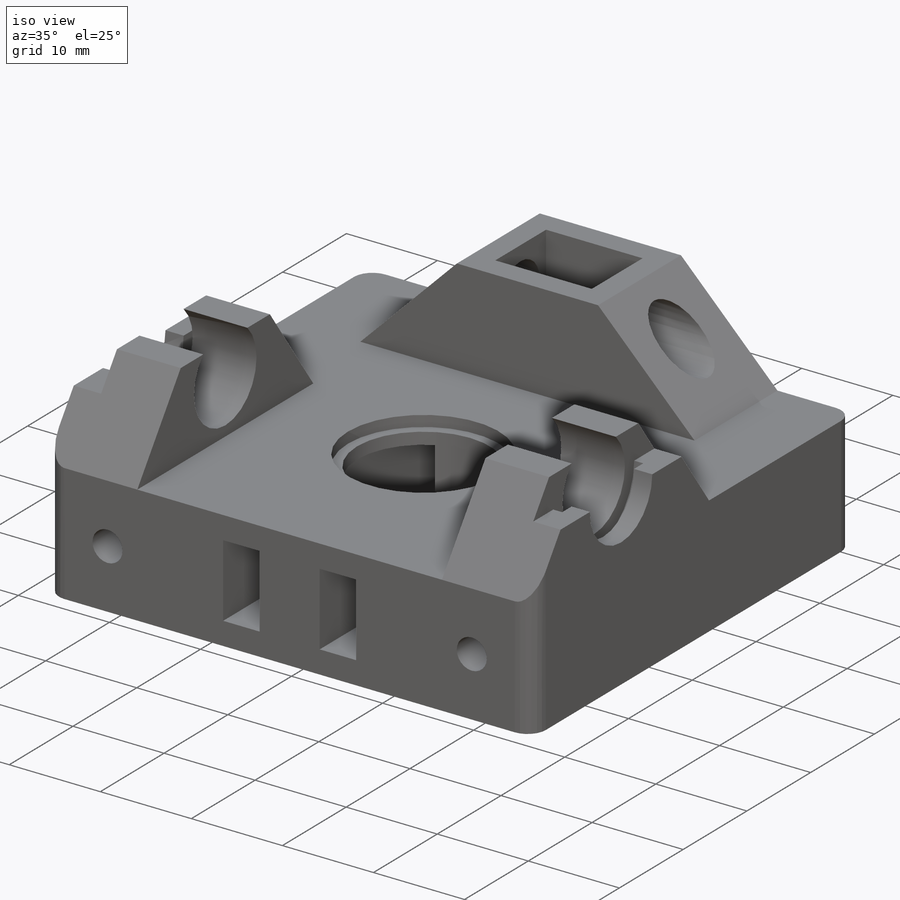
[diagram: iso view]
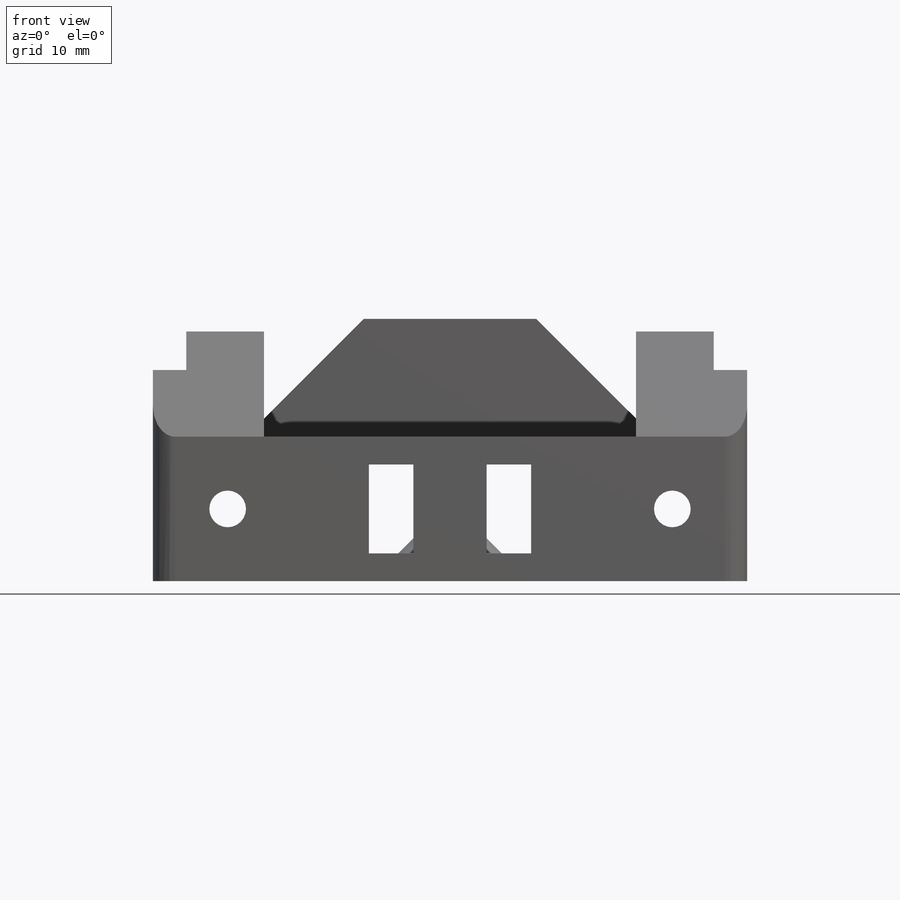
[diagram: front view]
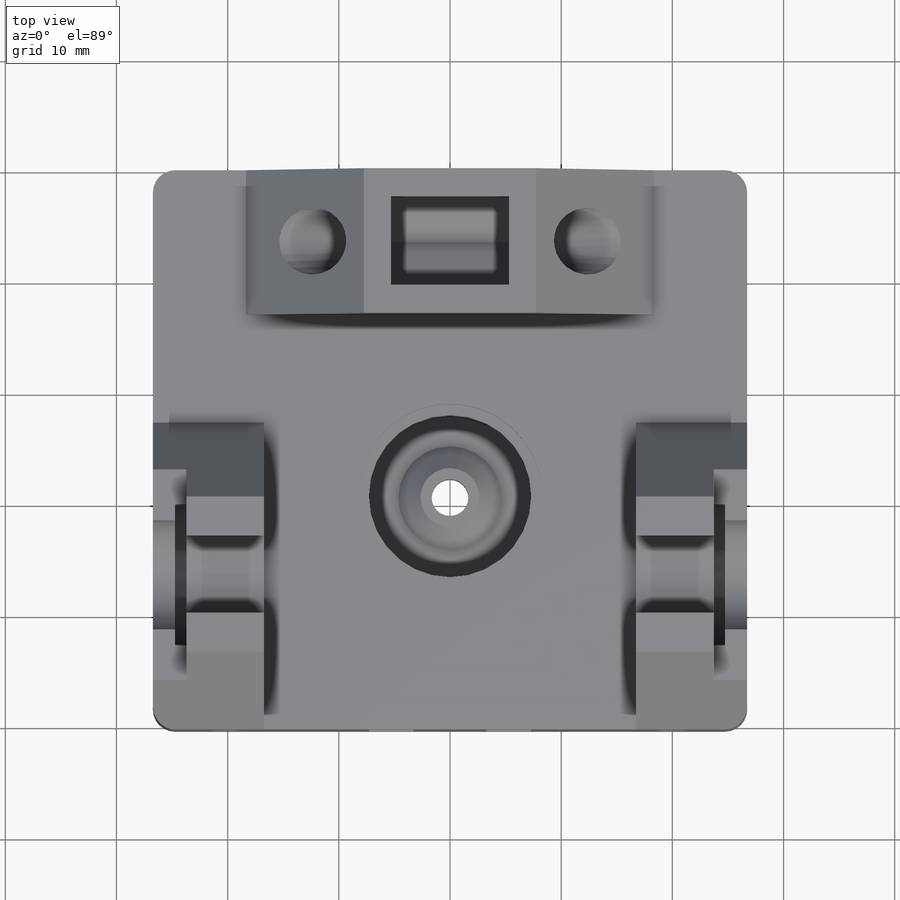
[diagram: top view]
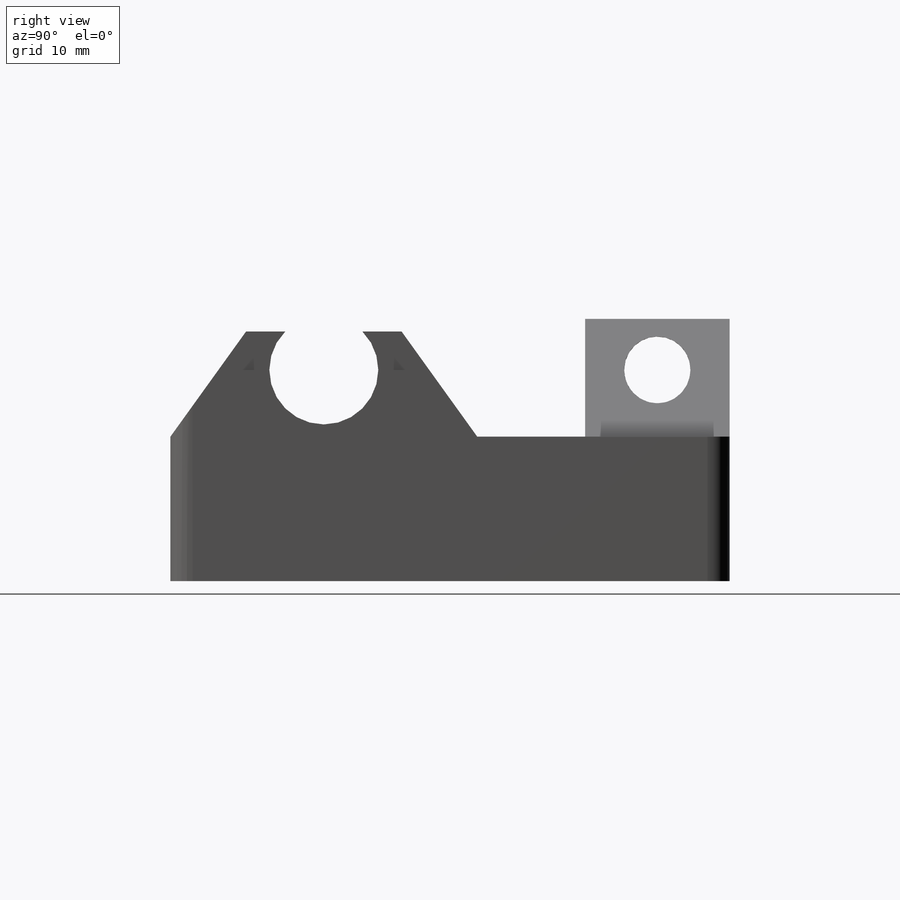
[diagram: right view]
SOLIDWORKS PART (.sldprt)
format: sldprt  version: not decoded by parser v0  size: 589,312 bytes
history: native  units: mm
features: sketch x17, cut_extrude x11, extrude x4, mirror x4, plane x3, material x1, chamfer x1, revolve x1, fillet x1 (+12 scaffold rows collapsed)
feature tree (55):
  scaffold x12  (default folders/planes/origin — collapsed)
  material  "Material <not specified>"
  sketch  "Sketch1"  dims[D1=8.4mm D2=8.4mm D3=20.0mm D4=20.0mm D5=53.4573mm D6=13.0mm]
  extrude  "Boss-Extrude1"  Depth=50.3mm
  sketch  "Sketch3"
  extrude  "Boss-Extrude2"  Depth=15mm
  sketch  "Sketch5"  dims[c1.D1=6.0mm c1.D2=8.0mm c1.D3=8.0mm c1.D4=5.0mm c2.D2=30.0mm c2.D4=6.5mm c2.D5=~3.321564mm c2.D6=30.0mm c3.D5=19.0mm]
  sketch  "Sketch8"  dims[D1=15.5mm D2=13.0mm D3=~18.97865mm]
  extrude  "Boss-Extrude3"  Depth=10.6mm
  chamfer  "Chamfer1"  Distance=10.6mm Angle=45deg
  cut_extrude  "Cut-Extrude1"  [1 undecoded]
  plane  "Plane1"
  sketch  "Sketch10"  dims[D1=9.2mm]
  cut_extrude  "Cut-Extrude2"  Depth=5.3mm
  mirror  "Mirror1"
  sketch  "Sketch11"  dims[c1.D2=6.0mm c1.D3=9.8mm c1.D4=15.6mm c2.D2=30.0mm c2.D5=135.0deg c3.D5=6.0mm c3.D1=0.0mm]
  extrude  "Boss-Extrude4"  Depth=10mm
  plane  "Plane2"  Offset=2mm
  sketch  "Sketch12"  dims[D1=12.7mm]
  cut_extrude  "Cut-Extrude3"  Depth=1mm
  sketch  "Sketch13"
  cut_extrude  "Cut-Extrude4"  Depth=3mm
  mirror  "Mirror2"
  sketch  "Sketch15"  dims[c1.D1=4.0mm c1.D2=8.0mm c1.D3=8.0mm c2.D1=4.0mm c2.D2=8.0mm c2.D3=3.3mm]
  sketch  "Sketch16"  dims[c1.D2=6.4mm c1.D3=3.3mm c1.D1=11.0388mm c2.D1=90.0deg c3.D1=8.0mm]
  cut_extrude  "Cut-Extrude5"  [1 undecoded]
  sketch  "Sketch17"  dims[D1=~4.957244mm]
  cut_extrude  "Cut-Extrude6"  Depth=10.5mm
  cut_extrude  "Cut-Extrude7"  [1 undecoded]
  mirror  "Mirror3"
  sketch  "Sketch18"  dims[D1=16.6mm]
  cut_extrude  "Cut-Extrude8"  Depth=1.2mm
  sketch  "Sketch20"  dims[D1=2.0mm D2=1.0mm D3=45.0deg]
  revolve  "Revolve1"  Angle=360deg
  sketch  "Sketch21"  dims[D1=3.3mm D2=3.3mm]
  cut_extrude  "Cut-Extrude9"  [1 undecoded]
  plane  "Plane3"  Offset=4mm
  sketch  "Sketch22"  dims[D1=6.5mm]
  cut_extrude  "Cut-Extrude10"  Depth=2.6mm
  mirror  "Mirror4"
  fillet  "Fillet1"  Radius=2mm
  sketch  "Sketch23"  dims[D1=0.0mm D2=0.0mm]
  sketch  "Sketch25"  dims[D2=19.0mm D3=2.0mm D1=0.0mm]
  cut_extrude  "Cut-Extrude11"  Depth=1mm
decode coverage: 29 of 39 modeling features carry decoded parameters
note: ~ marks probable driven/reference dimensions
note: 4 parameter values undecoded
summary: no parameter record found for 4 features
note: suppression state not decoded; provenance and decode notes live in map.json
